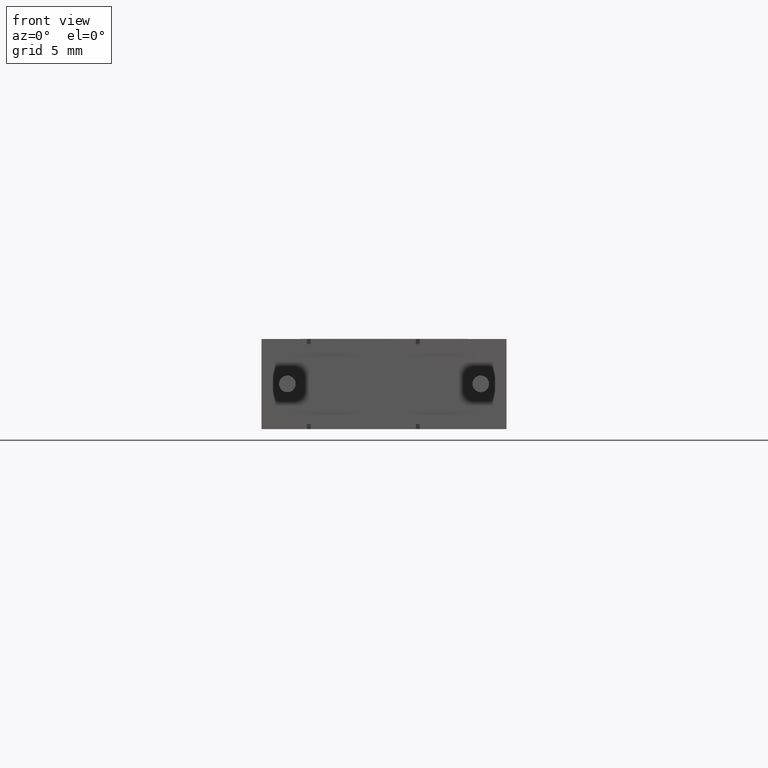
[diagram: clean part render]
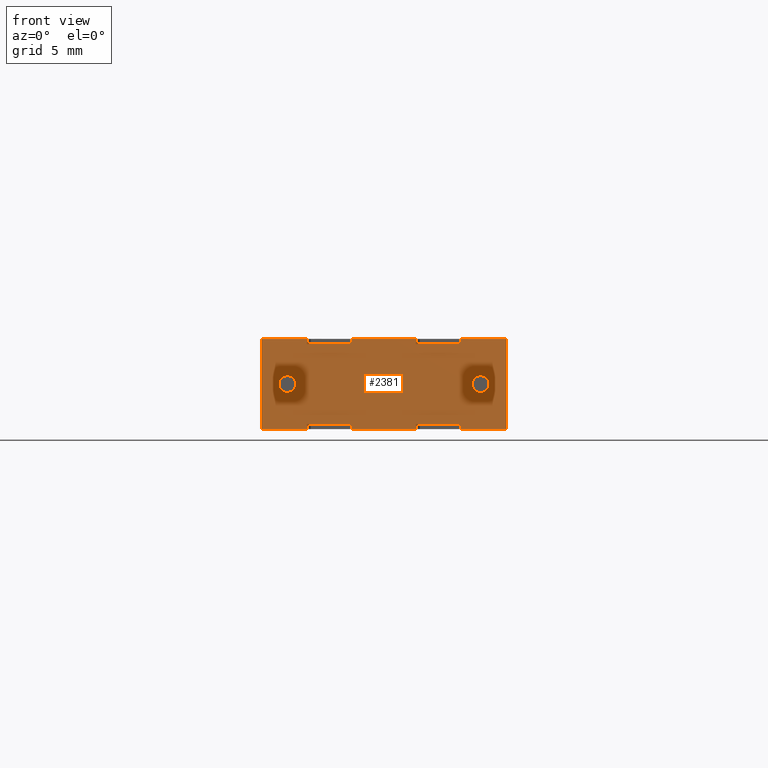
[diagram: same view with one face highlighted and labeled with its STEP entity id]
A machine part, front view. The second image highlights one B-rep face of the part: STEP entity #2381.
In plain terms, the highlighted planar face has unit normal (0, 1, 0).
Its self-contained STEP definition (entity closure, byte-faithful):
#2 = DIRECTION ( 'NONE',  ( -0.0000000000000000000, -0.0000000000000000000, -1.000000000000000000 ) ) ;
#19 = EDGE_CURVE ( 'NONE', #403, #2783, #2978, .T. ) ;
#33 = DIRECTION ( 'NONE',  ( 1.000000000000000000, 0.0000000000000000000, 0.0000000000000000000 ) ) ;
#48 = LINE ( 'NONE', #2834, #719 ) ;
#60 = PLANE ( 'NONE',  #2883 ) ;
#166 = LINE ( 'NONE', #3141, #626 ) ;
#172 = ORIENTED_EDGE ( 'NONE', *, *, #2396, .T. ) ;
#181 = EDGE_CURVE ( 'NONE', #574, #3038, #2724, .T. ) ;
#182 = CARTESIAN_POINT ( 'NONE',  ( 5.986499999999999500, 2.151398264402112600E-016, 0.1995000000000000100 ) ) ;
#206 = EDGE_CURVE ( 'NONE', #2775, #1706, #785, .T. ) ;
#217 = VERTEX_POINT ( 'NONE', #1814 ) ;
#227 = CIRCLE ( 'NONE', #1667, 0.3250000000000000100 ) ;
#257 = CARTESIAN_POINT ( 'NONE',  ( 0.0000000000000000000, 0.0000000000000000000, 3.500000000000000000 ) ) ;
#297 = CARTESIAN_POINT ( 'NONE',  ( 3.513500000000000100, 2.151398264402112600E-016, 0.0000000000000000000 ) ) ;
#310 = ORIENTED_EDGE ( 'NONE', *, *, #1333, .F. ) ;
#317 = VECTOR ( 'NONE', #2071, 1000.000000000000000 ) ;
#329 = DIRECTION ( 'NONE',  ( 0.0000000000000000000, 1.000000000000000000, 0.0000000000000000000 ) ) ;
#392 = DIRECTION ( 'NONE',  ( 1.000000000000000000, 0.0000000000000000000, 0.0000000000000000000 ) ) ;
#397 = CARTESIAN_POINT ( 'NONE',  ( 9.500000000000000000, 0.0000000000000000000, 3.500000000000000000 ) ) ;
#398 = VECTOR ( 'NONE', #2840, 1000.000000000000000 ) ;
#401 = VECTOR ( 'NONE', #1503, 1000.000000000000000 ) ;
#403 = VERTEX_POINT ( 'NONE', #1083 ) ;
#435 = VERTEX_POINT ( 'NONE', #859 ) ;
#441 = AXIS2_PLACEMENT_3D ( 'NONE', #516, #2259, #1500 ) ;
#451 = VECTOR ( 'NONE', #597, 1000.000000000000000 ) ;
#455 = VECTOR ( 'NONE', #33, 1000.000000000000000 ) ;
#463 = VECTOR ( 'NONE', #2378, 1000.000000000000000 ) ;
#483 = VECTOR ( 'NONE', #2579, 1000.000000000000000 ) ;
#500 = VECTOR ( 'NONE', #2231, 1000.000000000000000 ) ;
#504 = LINE ( 'NONE', #257, #1853 ) ;
#516 = CARTESIAN_POINT ( 'NONE',  ( 0.9999999999999991100, 0.0000000000000000000, 1.749999999999999800 ) ) ;
#518 = CARTESIAN_POINT ( 'NONE',  ( 1.760000000000000000, 1.077689183249670800E-016, 0.1995000000000000100 ) ) ;
#538 = CARTESIAN_POINT ( 'NONE',  ( 3.513500000000000100, 2.151398264402112600E-016, 0.1995000000000000100 ) ) ;
#544 = ORIENTED_EDGE ( 'NONE', *, *, #1606, .T. ) ;
#555 = DIRECTION ( 'NONE',  ( 1.000000000000000000, -6.123233995736766000E-017, 0.0000000000000000000 ) ) ;
#568 = DIRECTION ( 'NONE',  ( 0.0000000000000000000, 0.0000000000000000000, -1.000000000000000000 ) ) ;
#574 = VERTEX_POINT ( 'NONE', #2355 ) ;
#595 = CARTESIAN_POINT ( 'NONE',  ( 1.760000000000000000, 1.077689183249670800E-016, 3.300500000000000000 ) ) ;
#597 = DIRECTION ( 'NONE',  ( 0.0000000000000000000, 0.0000000000000000000, 1.000000000000000000 ) ) ;
#612 = DIRECTION ( 'NONE',  ( 0.0000000000000000000, 0.0000000000000000000, -1.000000000000000000 ) ) ;
#626 = VECTOR ( 'NONE', #2862, 1000.000000000000000 ) ;
#638 = LINE ( 'NONE', #2218, #1274 ) ;
#651 = EDGE_CURVE ( 'NONE', #2060, #3240, #166, .T. ) ;
#675 = CARTESIAN_POINT ( 'NONE',  ( 3.513500000000000100, 2.151398264402112600E-016, 3.500000000000000000 ) ) ;
#681 = LINE ( 'NONE', #518, #401 ) ;
#682 = EDGE_CURVE ( 'NONE', #818, #2520, #1577, .T. ) ;
#719 = VECTOR ( 'NONE', #555, 1000.000000000000000 ) ;
#724 = AXIS2_PLACEMENT_3D ( 'NONE', #2721, #2966, #1209 ) ;
#755 = VECTOR ( 'NONE', #2920, 1000.000000000000000 ) ;
#777 = EDGE_LOOP ( 'NONE', ( #2446, #2093 ) ) ;
#785 = LINE ( 'NONE', #2083, #317 ) ;
#814 = DIRECTION ( 'NONE',  ( -0.0000000000000000000, 1.000000000000000000, -0.0000000000000000000 ) ) ;
#818 = VERTEX_POINT ( 'NONE', #1174 ) ;
#859 = CARTESIAN_POINT ( 'NONE',  ( 7.739999999999999300, 0.0000000000000000000, 0.1995000000000000100 ) ) ;
#863 = VERTEX_POINT ( 'NONE', #1708 ) ;
#902 = DIRECTION ( 'NONE',  ( 0.0000000000000000000, 0.0000000000000000000, 1.000000000000000000 ) ) ;
#906 = CARTESIAN_POINT ( 'NONE',  ( 1.760000000000000000, 0.0000000000000000000, 3.500000000000000000 ) ) ;
#1044 = CARTESIAN_POINT ( 'NONE',  ( 5.986499999999999500, 2.151398264402112600E-016, 3.300500000000000000 ) ) ;
#1055 = LINE ( 'NONE', #2097, #398 ) ;
#1083 = CARTESIAN_POINT ( 'NONE',  ( 0.9999999999999991100, 0.0000000000000000000, 1.424999999999999800 ) ) ;
#1094 = DIRECTION ( 'NONE',  ( 0.0000000000000000000, -0.0000000000000000000, 1.000000000000000000 ) ) ;
#1174 = CARTESIAN_POINT ( 'NONE',  ( 7.739999999999999300, 1.077689183249670800E-016, 3.300500000000000000 ) ) ;
#1175 = CARTESIAN_POINT ( 'NONE',  ( 5.986499999999999500, 2.151398264402112600E-016, 3.500000000000000000 ) ) ;
#1180 = EDGE_CURVE ( 'NONE', #1487, #435, #48, .T. ) ;
#1190 = ORIENTED_EDGE ( 'NONE', *, *, #2997, .T. ) ;
#1192 = DIRECTION ( 'NONE',  ( -0.0000000000000000000, -0.0000000000000000000, -1.000000000000000000 ) ) ;
#1198 = ORIENTED_EDGE ( 'NONE', *, *, #1894, .F. ) ;
#1209 = DIRECTION ( 'NONE',  ( 0.0000000000000000000, 0.0000000000000000000, 1.000000000000000000 ) ) ;
#1229 = CIRCLE ( 'NONE', #441, 0.3249999999999997900 ) ;
#1234 = LINE ( 'NONE', #397, #2526 ) ;
#1235 = ORIENTED_EDGE ( 'NONE', *, *, #1361, .F. ) ;
#1242 = CARTESIAN_POINT ( 'NONE',  ( 1.760000000000000000, 1.077689183249670800E-016, 3.300500000000000000 ) ) ;
#1261 = CARTESIAN_POINT ( 'NONE',  ( 8.500000000000000000, 0.0000000000000000000, 1.424999999999999800 ) ) ;
#1274 = VECTOR ( 'NONE', #2713, 1000.000000000000000 ) ;
#1326 = DIRECTION ( 'NONE',  ( 0.0000000000000000000, 0.0000000000000000000, -1.000000000000000000 ) ) ;
#1333 = EDGE_CURVE ( 'NONE', #574, #863, #681, .T. ) ;
#1336 = FACE_BOUND ( 'NONE', #777, .T. ) ;
#1354 = VECTOR ( 'NONE', #2321, 1000.000000000000000 ) ;
#1361 = EDGE_CURVE ( 'NONE', #217, #818, #3137, .T. ) ;
#1395 = CARTESIAN_POINT ( 'NONE',  ( 1.760000000000000000, 1.077689183249670800E-016, 3.300500000000000000 ) ) ;
#1407 = CIRCLE ( 'NONE', #2412, 0.3250000000000000100 ) ;
#1437 = DIRECTION ( 'NONE',  ( 0.0000000000000000000, 0.0000000000000000000, -1.000000000000000000 ) ) ;
#1439 = CARTESIAN_POINT ( 'NONE',  ( 7.740000000000000200, 0.0000000000000000000, 3.500000000000000000 ) ) ;
#1443 = VECTOR ( 'NONE', #392, 1000.000000000000000 ) ;
#1456 = CARTESIAN_POINT ( 'NONE',  ( 1.760000000000000200, -2.710505431213761100E-017, 0.0000000000000000000 ) ) ;
#1487 = VERTEX_POINT ( 'NONE', #2448 ) ;
#1491 = VERTEX_POINT ( 'NONE', #2699 ) ;
#1497 = ORIENTED_EDGE ( 'NONE', *, *, #651, .F. ) ;
#1500 = DIRECTION ( 'NONE',  ( 0.0000000000000000000, 0.0000000000000000000, 1.000000000000000000 ) ) ;
#1503 = DIRECTION ( 'NONE',  ( -1.000000000000000000, -6.123233995736766000E-017, 0.0000000000000000000 ) ) ;
#1505 = VERTEX_POINT ( 'NONE', #675 ) ;
#1519 = EDGE_CURVE ( 'NONE', #1505, #2189, #1779, .T. ) ;
#1557 = EDGE_CURVE ( 'NONE', #3221, #1706, #1234, .T. ) ;
#1577 = LINE ( 'NONE', #1903, #2044 ) ;
#1594 = ORIENTED_EDGE ( 'NONE', *, *, #3048, .T. ) ;
#1598 = CARTESIAN_POINT ( 'NONE',  ( 0.0000000000000000000, 0.0000000000000000000, 0.0000000000000000000 ) ) ;
#1600 = VERTEX_POINT ( 'NONE', #1456 ) ;
#1606 = EDGE_CURVE ( 'NONE', #435, #2775, #638, .T. ) ;
#1608 = LINE ( 'NONE', #1898, #1443 ) ;
#1667 = AXIS2_PLACEMENT_3D ( 'NONE', #3052, #814, #568 ) ;
#1687 = VERTEX_POINT ( 'NONE', #595 ) ;
#1706 = VERTEX_POINT ( 'NONE', #2578 ) ;
#1708 = CARTESIAN_POINT ( 'NONE',  ( 1.760000000000000000, 0.0000000000000000000, 0.1995000000000000100 ) ) ;
#1720 = ORIENTED_EDGE ( 'NONE', *, *, #181, .T. ) ;
#1724 = LINE ( 'NONE', #182, #1986 ) ;
#1726 = LINE ( 'NONE', #1395, #451 ) ;
#1768 = ORIENTED_EDGE ( 'NONE', *, *, #682, .F. ) ;
#1769 = VERTEX_POINT ( 'NONE', #1261 ) ;
#1772 = CARTESIAN_POINT ( 'NONE',  ( 7.739999999999999300, 1.077689183249670800E-016, 3.300500000000000000 ) ) ;
#1777 = EDGE_CURVE ( 'NONE', #2060, #3059, #504, .T. ) ;
#1779 = LINE ( 'NONE', #3152, #755 ) ;
#1808 = VERTEX_POINT ( 'NONE', #2046 ) ;
#1814 = CARTESIAN_POINT ( 'NONE',  ( 5.986499999999999500, 2.151398264402112600E-016, 3.300500000000000000 ) ) ;
#1831 = CARTESIAN_POINT ( 'NONE',  ( 0.0000000000000000000, 0.0000000000000000000, 0.0000000000000000000 ) ) ;
#1834 = CARTESIAN_POINT ( 'NONE',  ( 5.986499999999999500, 0.0000000000000000000, 0.0000000000000000000 ) ) ;
#1853 = VECTOR ( 'NONE', #2, 1000.000000000000000 ) ;
#1875 = LINE ( 'NONE', #1831, #455 ) ;
#1894 = EDGE_CURVE ( 'NONE', #2520, #3221, #2818, .T. ) ;
#1897 = ORIENTED_EDGE ( 'NONE', *, *, #2156, .T. ) ;
#1898 = CARTESIAN_POINT ( 'NONE',  ( 0.0000000000000000000, 0.0000000000000000000, 0.0000000000000000000 ) ) ;
#1903 = CARTESIAN_POINT ( 'NONE',  ( 7.739999999999999300, 1.077689183249670800E-016, 3.300500000000000000 ) ) ;
#1914 = EDGE_CURVE ( 'NONE', #1808, #1505, #1055, .T. ) ;
#1915 = FACE_BOUND ( 'NONE', #3047, .T. ) ;
#1920 = VERTEX_POINT ( 'NONE', #1834 ) ;
#1925 = EDGE_LOOP ( 'NONE', ( #2167, #310, #1720, #1897, #2977, #2309, #544, #2965, #2104, #1198, #1768, #1235, #1594, #2498, #2276, #2648, #172, #1497, #2558, #2084 ) ) ;
#1986 = VECTOR ( 'NONE', #1437, 1000.000000000000000 ) ;
#1990 = FACE_OUTER_BOUND ( 'NONE', #1925, .T. ) ;
#1993 = EDGE_CURVE ( 'NONE', #2783, #403, #1229, .T. ) ;
#2041 = EDGE_CURVE ( 'NONE', #1808, #1687, #2249, .T. ) ;
#2044 = VECTOR ( 'NONE', #902, 1000.000000000000000 ) ;
#2046 = CARTESIAN_POINT ( 'NONE',  ( 3.513500000000000100, 2.151398264402112600E-016, 3.300500000000000000 ) ) ;
#2060 = VERTEX_POINT ( 'NONE', #3058 ) ;
#2071 = DIRECTION ( 'NONE',  ( 1.000000000000000000, 0.0000000000000000000, 0.0000000000000000000 ) ) ;
#2083 = CARTESIAN_POINT ( 'NONE',  ( 0.0000000000000000000, 0.0000000000000000000, 0.0000000000000000000 ) ) ;
#2084 = ORIENTED_EDGE ( 'NONE', *, *, #2841, .T. ) ;
#2093 = ORIENTED_EDGE ( 'NONE', *, *, #19, .F. ) ;
#2097 = CARTESIAN_POINT ( 'NONE',  ( 3.513500000000000100, 2.151398264402112600E-016, 3.300500000000000000 ) ) ;
#2104 = ORIENTED_EDGE ( 'NONE', *, *, #1557, .F. ) ;
#2156 = EDGE_CURVE ( 'NONE', #3038, #1920, #1875, .T. ) ;
#2167 = ORIENTED_EDGE ( 'NONE', *, *, #2970, .F. ) ;
#2189 = VERTEX_POINT ( 'NONE', #1175 ) ;
#2217 = ORIENTED_EDGE ( 'NONE', *, *, #2388, .T. ) ;
#2218 = CARTESIAN_POINT ( 'NONE',  ( 7.739999999999999300, 1.077689183249670800E-016, 0.1995000000000000100 ) ) ;
#2231 = DIRECTION ( 'NONE',  ( -1.000000000000000000, -6.123233995736766000E-017, -0.0000000000000000000 ) ) ;
#2249 = LINE ( 'NONE', #1242, #500 ) ;
#2259 = DIRECTION ( 'NONE',  ( -0.0000000000000000000, -1.000000000000000000, -0.0000000000000000000 ) ) ;
#2264 = DIRECTION ( 'NONE',  ( 1.000000000000000000, -6.123233995736766000E-017, -0.0000000000000000000 ) ) ;
#2276 = ORIENTED_EDGE ( 'NONE', *, *, #1914, .F. ) ;
#2309 = ORIENTED_EDGE ( 'NONE', *, *, #1180, .T. ) ;
#2317 = CARTESIAN_POINT ( 'NONE',  ( 0.0000000000000000000, 0.0000000000000000000, 3.500000000000000000 ) ) ;
#2321 = DIRECTION ( 'NONE',  ( 0.0000000000000000000, 0.0000000000000000000, -1.000000000000000000 ) ) ;
#2355 = CARTESIAN_POINT ( 'NONE',  ( 3.513500000000000100, 0.0000000000000000000, 0.1995000000000000100 ) ) ;
#2378 = DIRECTION ( 'NONE',  ( 1.000000000000000000, 0.0000000000000000000, 0.0000000000000000000 ) ) ;
#2381 = ADVANCED_FACE ( 'NONE', ( #1915, #1990, #1336 ), #60, .F. ) ;
#2388 = EDGE_CURVE ( 'NONE', #1491, #1769, #1407, .T. ) ;
#2396 = EDGE_CURVE ( 'NONE', #1687, #3240, #1726, .T. ) ;
#2412 = AXIS2_PLACEMENT_3D ( 'NONE', #2819, #2809, #1326 ) ;
#2432 = CARTESIAN_POINT ( 'NONE',  ( 1.760000000000000000, 1.077689183249670800E-016, 0.1995000000000000100 ) ) ;
#2446 = ORIENTED_EDGE ( 'NONE', *, *, #1993, .F. ) ;
#2448 = CARTESIAN_POINT ( 'NONE',  ( 5.986499999999999500, 0.0000000000000000000, 0.1995000000000000100 ) ) ;
#2492 = VECTOR ( 'NONE', #2264, 1000.000000000000000 ) ;
#2498 = ORIENTED_EDGE ( 'NONE', *, *, #1519, .F. ) ;
#2520 = VERTEX_POINT ( 'NONE', #1439 ) ;
#2526 = VECTOR ( 'NONE', #1192, 1000.000000000000000 ) ;
#2558 = ORIENTED_EDGE ( 'NONE', *, *, #1777, .T. ) ;
#2578 = CARTESIAN_POINT ( 'NONE',  ( 9.500000000000000000, 0.0000000000000000000, 0.0000000000000000000 ) ) ;
#2579 = DIRECTION ( 'NONE',  ( 0.0000000000000000000, 0.0000000000000000000, 1.000000000000000000 ) ) ;
#2648 = ORIENTED_EDGE ( 'NONE', *, *, #2041, .T. ) ;
#2699 = CARTESIAN_POINT ( 'NONE',  ( 8.500000000000000000, 0.0000000000000000000, 2.074999999999999700 ) ) ;
#2713 = DIRECTION ( 'NONE',  ( 0.0000000000000000000, 0.0000000000000000000, -1.000000000000000000 ) ) ;
#2721 = CARTESIAN_POINT ( 'NONE',  ( 0.9999999999999991100, 0.0000000000000000000, 1.749999999999999800 ) ) ;
#2724 = LINE ( 'NONE', #538, #1354 ) ;
#2775 = VERTEX_POINT ( 'NONE', #2882 ) ;
#2783 = VERTEX_POINT ( 'NONE', #2909 ) ;
#2802 = VECTOR ( 'NONE', #612, 1000.000000000000000 ) ;
#2809 = DIRECTION ( 'NONE',  ( -0.0000000000000000000, 1.000000000000000000, -0.0000000000000000000 ) ) ;
#2818 = LINE ( 'NONE', #3068, #463 ) ;
#2819 = CARTESIAN_POINT ( 'NONE',  ( 8.500000000000000000, 0.0000000000000000000, 1.749999999999999800 ) ) ;
#2834 = CARTESIAN_POINT ( 'NONE',  ( 7.739999999999999300, 1.077689183249670800E-016, 0.1995000000000000100 ) ) ;
#2840 = DIRECTION ( 'NONE',  ( 0.0000000000000000000, 0.0000000000000000000, 1.000000000000000000 ) ) ;
#2841 = EDGE_CURVE ( 'NONE', #3059, #1600, #1608, .T. ) ;
#2862 = DIRECTION ( 'NONE',  ( 1.000000000000000000, 0.0000000000000000000, 0.0000000000000000000 ) ) ;
#2882 = CARTESIAN_POINT ( 'NONE',  ( 7.739999999999999300, 1.077689183249670800E-016, 0.0000000000000000000 ) ) ;
#2883 = AXIS2_PLACEMENT_3D ( 'NONE', #2317, #329, #1094 ) ;
#2886 = EDGE_CURVE ( 'NONE', #1487, #1920, #1724, .T. ) ;
#2909 = CARTESIAN_POINT ( 'NONE',  ( 0.9999999999999991100, 0.0000000000000000000, 2.074999999999999700 ) ) ;
#2920 = DIRECTION ( 'NONE',  ( 1.000000000000000000, 0.0000000000000000000, 0.0000000000000000000 ) ) ;
#2965 = ORIENTED_EDGE ( 'NONE', *, *, #206, .T. ) ;
#2966 = DIRECTION ( 'NONE',  ( -0.0000000000000000000, -1.000000000000000000, -0.0000000000000000000 ) ) ;
#2970 = EDGE_CURVE ( 'NONE', #863, #1600, #3026, .T. ) ;
#2977 = ORIENTED_EDGE ( 'NONE', *, *, #2886, .F. ) ;
#2978 = CIRCLE ( 'NONE', #724, 0.3249999999999997900 ) ;
#2997 = EDGE_CURVE ( 'NONE', #1769, #1491, #227, .T. ) ;
#3026 = LINE ( 'NONE', #2432, #2802 ) ;
#3034 = CARTESIAN_POINT ( 'NONE',  ( 9.500000000000000000, 0.0000000000000000000, 3.500000000000000000 ) ) ;
#3038 = VERTEX_POINT ( 'NONE', #297 ) ;
#3047 = EDGE_LOOP ( 'NONE', ( #2217, #1190 ) ) ;
#3048 = EDGE_CURVE ( 'NONE', #217, #2189, #3232, .T. ) ;
#3052 = CARTESIAN_POINT ( 'NONE',  ( 8.500000000000000000, 0.0000000000000000000, 1.749999999999999800 ) ) ;
#3058 = CARTESIAN_POINT ( 'NONE',  ( 0.0000000000000000000, 0.0000000000000000000, 3.500000000000000000 ) ) ;
#3059 = VERTEX_POINT ( 'NONE', #1598 ) ;
#3068 = CARTESIAN_POINT ( 'NONE',  ( 0.0000000000000000000, 0.0000000000000000000, 3.500000000000000000 ) ) ;
#3137 = LINE ( 'NONE', #1772, #2492 ) ;
#3141 = CARTESIAN_POINT ( 'NONE',  ( 0.0000000000000000000, 0.0000000000000000000, 3.500000000000000000 ) ) ;
#3152 = CARTESIAN_POINT ( 'NONE',  ( 0.0000000000000000000, 0.0000000000000000000, 3.500000000000000000 ) ) ;
#3221 = VERTEX_POINT ( 'NONE', #3034 ) ;
#3232 = LINE ( 'NONE', #1044, #483 ) ;
#3240 = VERTEX_POINT ( 'NONE', #906 ) ;